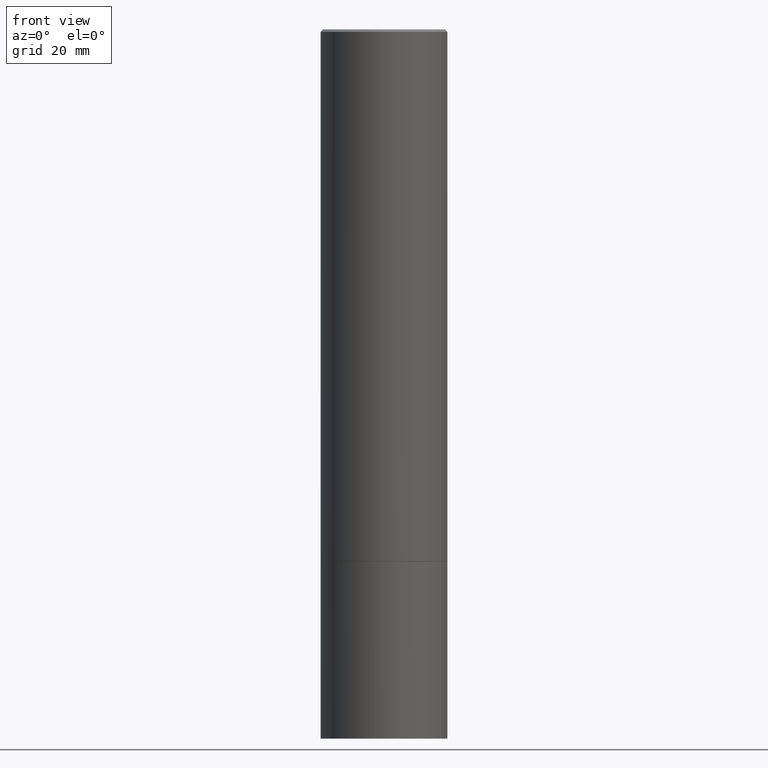
[diagram: clean part render]
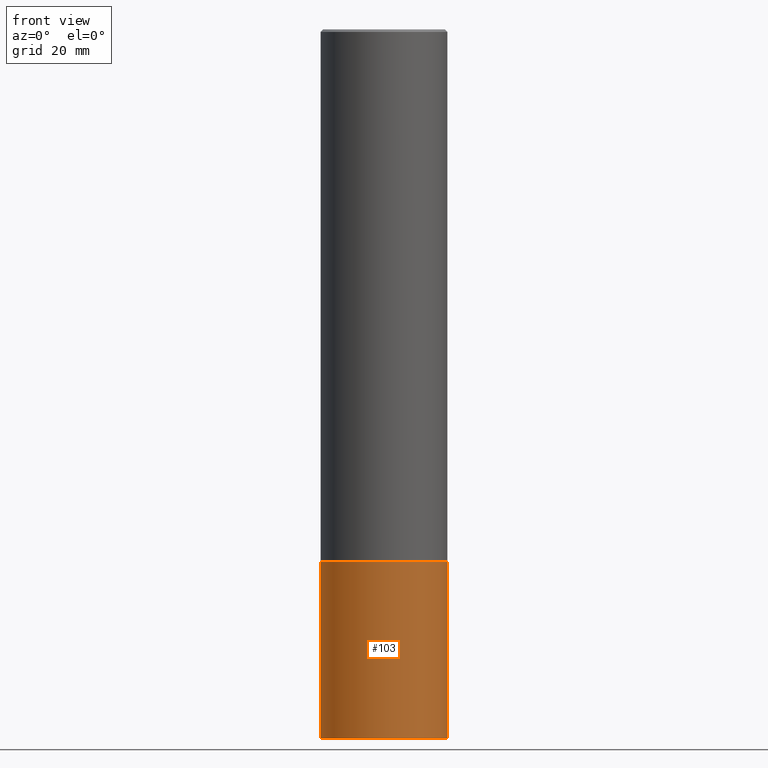
[diagram: same view with one face highlighted and labeled with its STEP entity id]
A machine part, front view. The second image highlights one B-rep face of the part: STEP entity #103.
In plain terms, the highlighted cylindrical surface (partial cylindrical patch) has radius 12.5006 mm, axis along (-0, 0, 1).
Its self-contained STEP definition (entity closure, byte-faithful):
#13 = VERTEX_POINT ( 'NONE', #352 ) ;
#16 = ORIENTED_EDGE ( 'NONE', *, *, #159, .F. ) ;
#48 = CARTESIAN_POINT ( 'NONE',  ( 0.4921499999999999764, -1.786975064033308982E-14, -4.133799999999999919 ) ) ;
#50 = CIRCLE ( 'NONE', #363, 0.4921499999999999764 ) ;
#53 = LINE ( 'NONE', #285, #299 ) ;
#65 = CYLINDRICAL_SURFACE ( 'NONE', #76, 0.4921499999999999764 ) ;
#73 = CARTESIAN_POINT ( 'NONE',  ( 0.4921499999999999764, -3.436665081823295777E-15, 2.399810400207969603E-29 ) ) ;
#76 = AXIS2_PLACEMENT_3D ( 'NONE', #117, #115, #99 ) ;
#78 = ORIENTED_EDGE ( 'NONE', *, *, #333, .F. ) ;
#99 = DIRECTION ( 'NONE',  ( 1.000000000000000000, -6.982962677686265922E-15, 4.876176775795935793E-29 ) ) ;
#103 = ADVANCED_FACE ( 'NONE', ( #314 ), #65, .T. ) ;
#105 = ORIENTED_EDGE ( 'NONE', *, *, #165, .T. ) ;
#111 = CARTESIAN_POINT ( 'NONE',  ( -0.4921499999999999764, -1.334178012692939009E-14, -4.133799999999999919 ) ) ;
#115 = DIRECTION ( 'NONE',  ( -2.445468806185136597E-29, 3.491481338843145583E-15, 1.000000000000000000 ) ) ;
#117 = CARTESIAN_POINT ( 'NONE',  ( 0.000000000000000000, 0.000000000000000000, 0.000000000000000000 ) ) ;
#121 = CARTESIAN_POINT ( 'NONE',  ( 1.347893496593123646E-28, -1.924434684343564878E-14, -5.511800000000000033 ) ) ;
#127 = DIRECTION ( 'NONE',  ( -2.445468806185136877E-29, 3.491481338843145188E-15, 1.000000000000000000 ) ) ;
#130 = DIRECTION ( 'NONE',  ( -2.445468806185136877E-29, 3.491481338843145188E-15, 1.000000000000000000 ) ) ;
#140 = VERTEX_POINT ( 'NONE', #48 ) ;
#154 = DIRECTION ( 'NONE',  ( -2.445468806185136597E-29, 3.491481338843145583E-15, 1.000000000000000000 ) ) ;
#157 = CIRCLE ( 'NONE', #328, 0.4921499999999999764 ) ;
#159 = EDGE_CURVE ( 'NONE', #13, #366, #53, .T. ) ;
#161 = DIRECTION ( 'NONE',  ( 1.000000000000000000, -6.982962677686265922E-15, 0.000000000000000000 ) ) ;
#165 = EDGE_CURVE ( 'NONE', #219, #140, #208, .T. ) ;
#168 = DIRECTION ( 'NONE',  ( 1.000000000000000000, -6.982962677686261977E-15, 0.000000000000000000 ) ) ;
#188 = ORIENTED_EDGE ( 'NONE', *, *, #297, .T. ) ;
#194 = VECTOR ( 'NONE', #130, 39.37007874015748143 ) ;
#208 = LINE ( 'NONE', #73, #194 ) ;
#219 = VERTEX_POINT ( 'NONE', #272 ) ;
#244 = DIRECTION ( 'NONE',  ( -2.445468806185136597E-29, 3.491481338843145583E-15, 1.000000000000000000 ) ) ;
#272 = CARTESIAN_POINT ( 'NONE',  ( 0.4921499999999999764, -2.268101192525894613E-14, -5.511800000000000033 ) ) ;
#285 = CARTESIAN_POINT ( 'NONE',  ( -0.4921499999999999764, 3.496936074043332897E-15, -2.420853904668951509E-29 ) ) ;
#297 = EDGE_CURVE ( 'NONE', #13, #219, #50, .T. ) ;
#299 = VECTOR ( 'NONE', #127, 39.37007874015748143 ) ;
#302 = EDGE_LOOP ( 'NONE', ( #16, #188, #105, #78 ) ) ;
#314 = FACE_OUTER_BOUND ( 'NONE', #302, .T. ) ;
#328 = AXIS2_PLACEMENT_3D ( 'NONE', #361, #244, #168 ) ;
#333 = EDGE_CURVE ( 'NONE', #366, #140, #157, .T. ) ;
#352 = CARTESIAN_POINT ( 'NONE',  ( -0.4921499999999999764, -1.334178012692939009E-14, -5.511800000000000033 ) ) ;
#361 = CARTESIAN_POINT ( 'NONE',  ( 1.010907895100811684E-28, -1.443308555850979562E-14, -4.133799999999999919 ) ) ;
#363 = AXIS2_PLACEMENT_3D ( 'NONE', #121, #154, #161 ) ;
#366 = VERTEX_POINT ( 'NONE', #111 ) ;